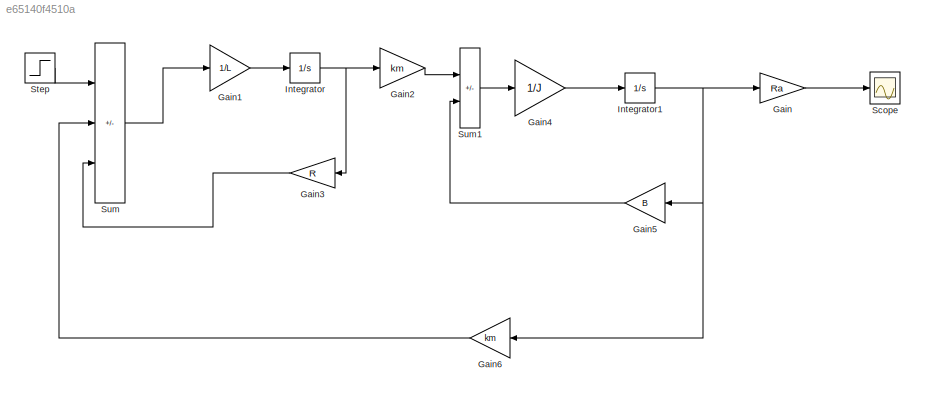
MODEL slx_e65140f4510a
KIND model
CONFIG AbsTol = auto
CONFIG EnableMultiTasking = off
CONFIG FixedStep = auto
CONFIG InitFcn = R=5.2;\nL=9.38e-4;\nJ=0.0072;\nB=3.89e-4;\nRa=0.05;\nkm=0.5931
CONFIG MaxStep = auto
CONFIG MinStep = auto
CONFIG RelTol = 1e-3
CONFIG SampleTimeConstraint = Unconstrained
CONFIG SolverName = VariableStepAuto
CONFIG StartTime = 0.0
CONFIG StopTime = 10.0
BLOCK [Gain] Gain
  Gain = Ra
BLOCK [Gain] Gain1
  Gain = 1/L
BLOCK [Gain] Gain2
  Gain = km
BLOCK [Gain] Gain3
  Gain = R
  NameLocation = top
BLOCK [Gain] Gain4
  Gain = 1/J
BLOCK [Gain] Gain5
  Gain = B
  NameLocation = top
BLOCK [Gain] Gain6
  Gain = km
  NameLocation = top
BLOCK [Integrator] Integrator
BLOCK [Integrator] Integrator1
BLOCK [Scope] Scope
  Floating = off
  NumInputPorts = 1
  ScopeSpecificationString = Simulink.scopes.TimeScopeBlockCfg('CurrentConfiguration', extmgr.ConfigurationSet(extmgr.Configuration('Core','General UI',true),extmgr.Configuration('Core','Source UI',true),extmgr.Configuration('Sources','WiredSimulink',true),extmgr.Configuration('Visuals','Time Domain',true,'SerializedDisplays',{struct('MinYLimReal','-0.05239','MaxYLimReal','0.47149','YLabelReal','','MinYLimMag','0.00000','MaxY...<+1350ch>
BLOCK [Step] Step
  After = 5
  SampleTime = 0
BLOCK [Sum] Sum
  IconShape = rectangular
  Inputs = +--
BLOCK [Sum] Sum1
  IconShape = rectangular
  Inputs = +-
LINE Gain1:1 -> Integrator:1
LINE Gain2:1 -> Sum1:1
LINE Gain3:1 -> Sum:3
LINE Gain4:1 -> Integrator1:1
LINE Gain5:1 -> Sum1:2
LINE Gain6:1 -> Sum:2
LINE Gain:1 -> Scope:1
NET Integrator1:1 -> Gain5:1, Gain6:1, Gain:1
NET Integrator:1 -> Gain2:1, Gain3:1
LINE Step:1 -> Sum:1
LINE Sum1:1 -> Gain4:1
LINE Sum:1 -> Gain1:1
note: NET lines group one-source signal fan-out (src -> all destinations, sorted); 1:1 wires keep LINE
